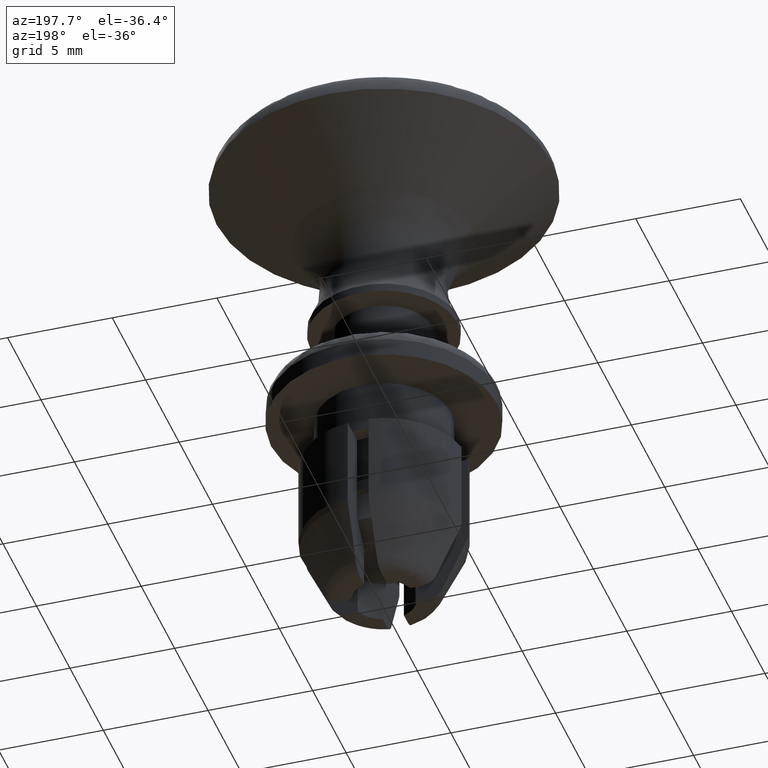
[diagram: clean part render]
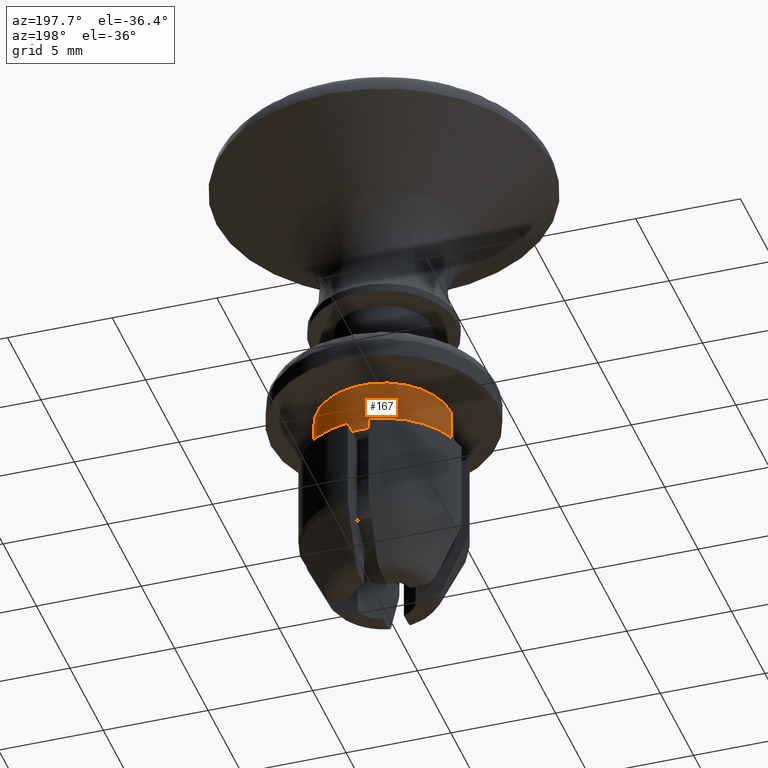
[diagram: same view with one face highlighted and labeled with its STEP entity id]
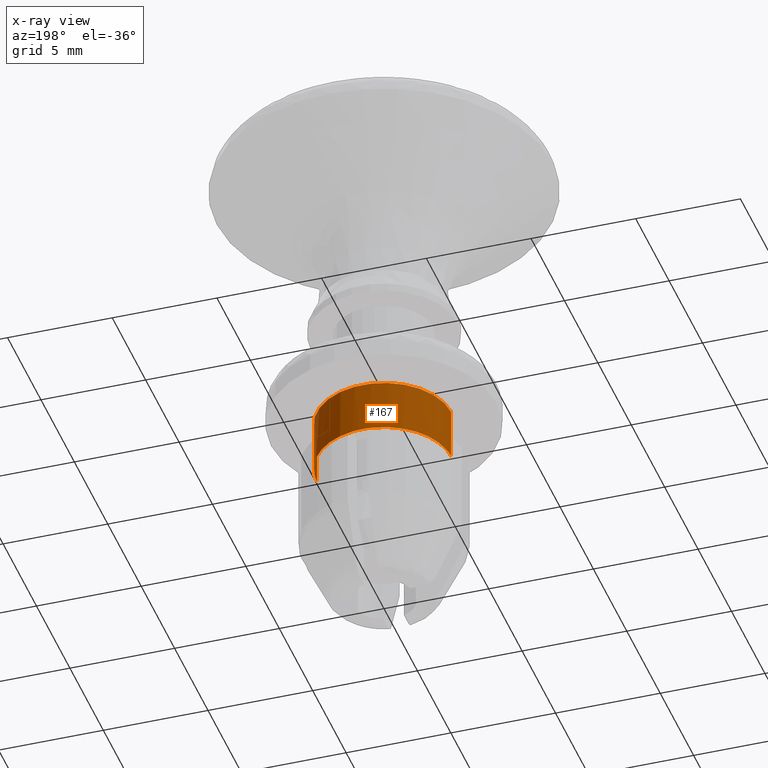
[diagram: x-ray of the same camera — body ghosted, the highlighted face saturated]
A machine part, auxiliary view. The second image highlights one B-rep face of the part: STEP entity #167.
The next image is the same camera in x-ray: the body ghosted, the highlighted face saturated — about 1% of this face is hidden behind the body in this view.
In plain terms, the highlighted cylindrical surface (partial cylindrical patch) has radius 3.2 mm, axis along (-0, -0, -1).
Its self-contained STEP definition (entity closure, byte-faithful):
#167=ADVANCED_FACE('',(#748),#747,.T.);
#747=CYLINDRICAL_SURFACE('',#1445,3.20000000000E+00);
#748=FACE_OUTER_BOUND('',#1446,.T.);
#1442=CARTESIAN_POINT('',(-1.97215226305E-31,0.00000000000E+00,-1.00200000000E+03));
#1443=DIRECTION('',(-0.00000000000E+00,-0.00000000000E+00,-1.00000000000E+00));
#1444=DIRECTION('',(1.00000000000E+00,1.22464679915E-16,0.00000000000E+00));
#1445=AXIS2_PLACEMENT_3D('',#1442,#1443,#1444);
#1446=EDGE_LOOP('',(#1990,#1991,#1992,#1993,#1994,#1995,#1996,#1997));
#1990=ORIENTED_EDGE('',*,*,#2184,.F.);
#1991=ORIENTED_EDGE('',*,*,#2250,.T.);
#1992=ORIENTED_EDGE('',*,*,#2175,.T.);
#1993=ORIENTED_EDGE('',*,*,#2217,.T.);
#1994=ORIENTED_EDGE('',*,*,#2234,.T.);
#1995=ORIENTED_EDGE('',*,*,#2216,.T.);
#1996=ORIENTED_EDGE('',*,*,#2169,.T.);
#1997=ORIENTED_EDGE('',*,*,#2251,.F.);
#2169=EDGE_CURVE('',#2731,#2760,#2767,.T.);
#2175=EDGE_CURVE('',#2806,#2665,#2807,.T.);
#2184=EDGE_CURVE('',#2862,#2861,#2869,.T.);
#2216=EDGE_CURVE('',#3054,#2731,#3075,.T.);
#2217=EDGE_CURVE('',#2665,#3035,#3081,.T.);
#2234=EDGE_CURVE('',#3035,#3054,#3188,.T.);
#2250=EDGE_CURVE('',#2862,#2806,#3288,.T.);
#2251=EDGE_CURVE('',#2861,#2760,#3294,.T.);
#2665=VERTEX_POINT('',#3897);
#2731=VERTEX_POINT('',#3942);
#2760=VERTEX_POINT('',#3961);
#2767=CIRCLE('',#3969,3.20000000000E+00);
#2806=VERTEX_POINT('',#3992);
#2807=CIRCLE('',#3996,3.20000000000E+00);
#2861=VERTEX_POINT('',#4031);
#2862=VERTEX_POINT('',#4032);
#2869=CIRCLE('',#4040,3.20000000000E+00);
#3035=VERTEX_POINT('',#4158);
#3054=VERTEX_POINT('',#4168);
#3075=CIRCLE('',#4184,3.20000000000E+00);
#3081=CIRCLE('',#4188,3.20000000000E+00);
#3188=CIRCLE('',#4252,3.20000000000E+00);
#3288=(BOUNDED_CURVE() B_SPLINE_CURVE(1,(#4303,#4304),.UNSPECIFIED.,.F.,.F.) B_SPLINE_CURVE_WITH_KNOTS((2,2),(8.33333233997E-02,9.16666663280E-01),.UNSPECIFIED.) CURVE() GEOMETRIC_REPRESENTATION_ITEM() RATIONAL_B_SPLINE_CURVE((1.00000000000E+00,1.00000000000E+00)) REPRESENTATION_ITEM('') );
#3294=(BOUNDED_CURVE() B_SPLINE_CURVE(1,(#4305,#4306),.UNSPECIFIED.,.F.,.F.) B_SPLINE_CURVE_WITH_KNOTS((2,2),(8.33333333333E-02,9.16666666667E-01),.UNSPECIFIED.) CURVE() GEOMETRIC_REPRESENTATION_ITEM() RATIONAL_B_SPLINE_CURVE((7.50000000000E-01,7.50000000000E-01)) REPRESENTATION_ITEM('') );
#3897=CARTESIAN_POINT('',(3.16069612586E+00,5.00000000000E-01,-4.50000000000E+00));
#3942=CARTESIAN_POINT('',(-3.16069612586E+00,5.00000000000E-01,-4.50000000000E+00));
#3961=CARTESIAN_POINT('',(-3.20000000000E+00,3.19635721813E-06,-4.50000000000E+00));
#3966=CARTESIAN_POINT('',(-1.97215226305E-31,0.00000000000E+00,-4.50000000000E+00));
#3967=DIRECTION('',(0.00000000000E+00,0.00000000000E+00,1.00000000000E+00));
#3968=DIRECTION('',(-9.87717539330E-01,1.56250000000E-01,-0.00000000000E+00));
#3969=AXIS2_PLACEMENT_3D('',#3966,#3967,#3968);
#3992=CARTESIAN_POINT('',(3.20000000000E+00,-3.77015610515E-16,-4.50000000000E+00));
#3993=CARTESIAN_POINT('',(-1.97215226305E-31,0.00000000000E+00,-4.50000000000E+00));
#3994=DIRECTION('',(-0.00000000000E+00,0.00000000000E+00,1.00000000000E+00));
#3995=DIRECTION('',(-1.00000000000E+00,-0.00000000000E+00,-0.00000000000E+00));
#3996=AXIS2_PLACEMENT_3D('',#3993,#3994,#3995);
#4031=CARTESIAN_POINT('',(-3.20000000000E+00,0.00000000000E+00,-2.00000000000E+00));
#4032=CARTESIAN_POINT('',(3.20000000000E+00,4.44089209850E-16,-2.00000000000E+00));
#4037=CARTESIAN_POINT('',(-1.97215226305E-31,0.00000000000E+00,-2.00000000000E+00));
#4038=DIRECTION('',(0.00000000000E+00,0.00000000000E+00,1.00000000000E+00));
#4039=DIRECTION('',(-1.00000000000E+00,-1.22460635382E-16,0.00000000000E+00));
#4040=AXIS2_PLACEMENT_3D('',#4037,#4038,#4039);
#4158=CARTESIAN_POINT('',(5.00000000000E-01,3.16069612586E+00,-4.50000000000E+00));
#4168=CARTESIAN_POINT('',(-5.00000000000E-01,3.16069612586E+00,-4.50000000000E+00));
#4181=CARTESIAN_POINT('',(-1.97215226305E-31,0.00000000000E+00,-4.50000000000E+00));
#4182=DIRECTION('',(0.00000000000E+00,-0.00000000000E+00,1.00000000000E+00));
#4183=DIRECTION('',(1.00000000000E+00,-0.00000000000E+00,-0.00000000000E+00));
#4184=AXIS2_PLACEMENT_3D('',#4181,#4182,#4183);
#4185=CARTESIAN_POINT('',(-1.97215226305E-31,0.00000000000E+00,-4.50000000000E+00));
#4186=DIRECTION('',(0.00000000000E+00,-0.00000000000E+00,1.00000000000E+00));
#4187=DIRECTION('',(1.00000000000E+00,-0.00000000000E+00,-0.00000000000E+00));
#4188=AXIS2_PLACEMENT_3D('',#4185,#4186,#4187);
#4249=CARTESIAN_POINT('',(-1.97215226305E-31,0.00000000000E+00,-4.50000000000E+00));
#4250=DIRECTION('',(-0.00000000000E+00,0.00000000000E+00,1.00000000000E+00));
#4251=DIRECTION('',(-1.00000000000E+00,-0.00000000000E+00,-0.00000000000E+00));
#4252=AXIS2_PLACEMENT_3D('',#4249,#4250,#4251);
#4303=CARTESIAN_POINT('',(3.20000000000E+00,3.91886975727E-16,-1.99999997020E+00));
#4304=CARTESIAN_POINT('',(3.20000000000E+00,3.91886975727E-16,-4.49999998984E+00));
#4305=CARTESIAN_POINT('',(-3.20000000000E+00,-2.96059473233E-16,-2.00000000000E+00));
#4306=CARTESIAN_POINT('',(-3.20000000000E+00,-2.96059473233E-16,-4.50000000000E+00));